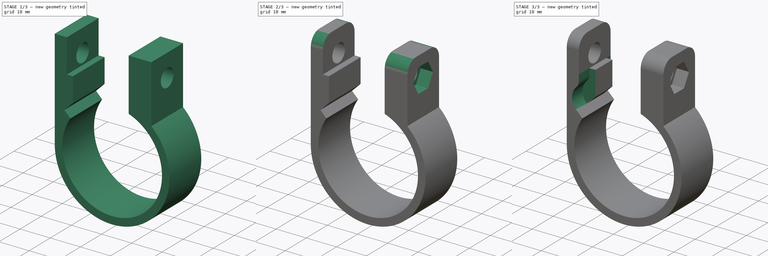
[diagram: build sequence overview — one tinted view per stage of 3, left to right]
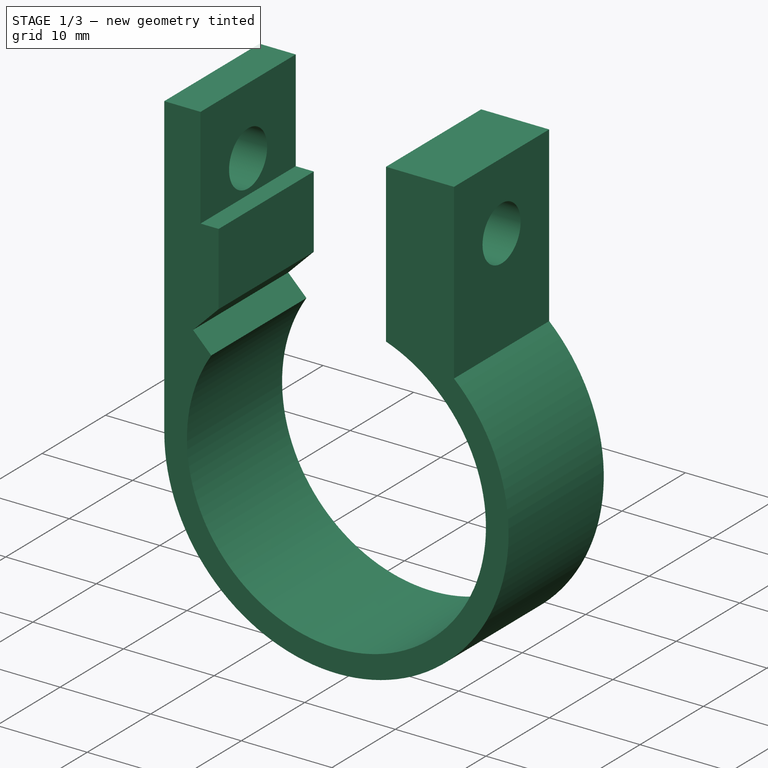
[diagram: stage 1 of 3 — iso view after this stage's code; geometry added in this stage tinted green]
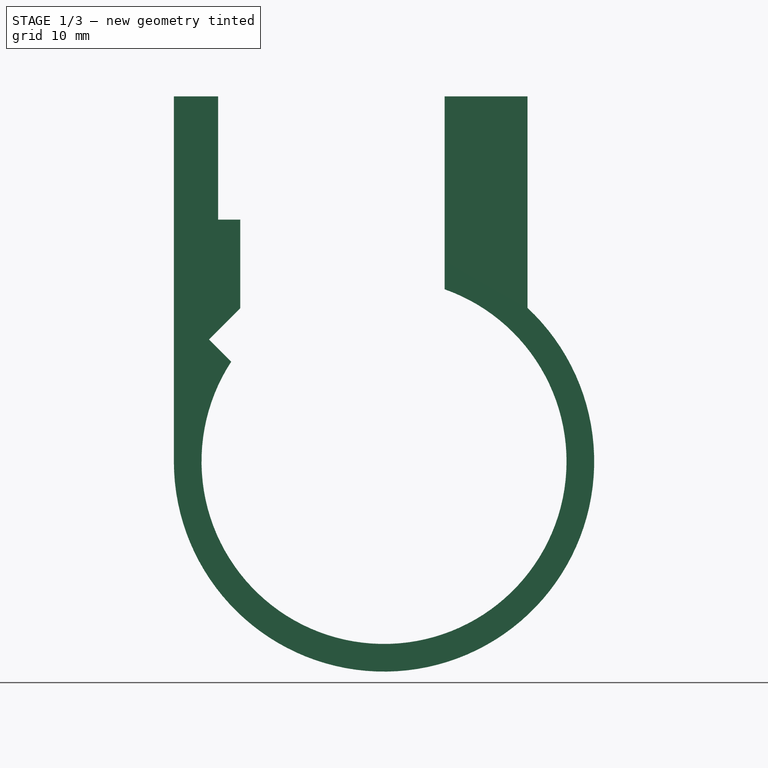
[diagram: stage 1 of 3 — front view after this stage's code; geometry added in this stage tinted green]
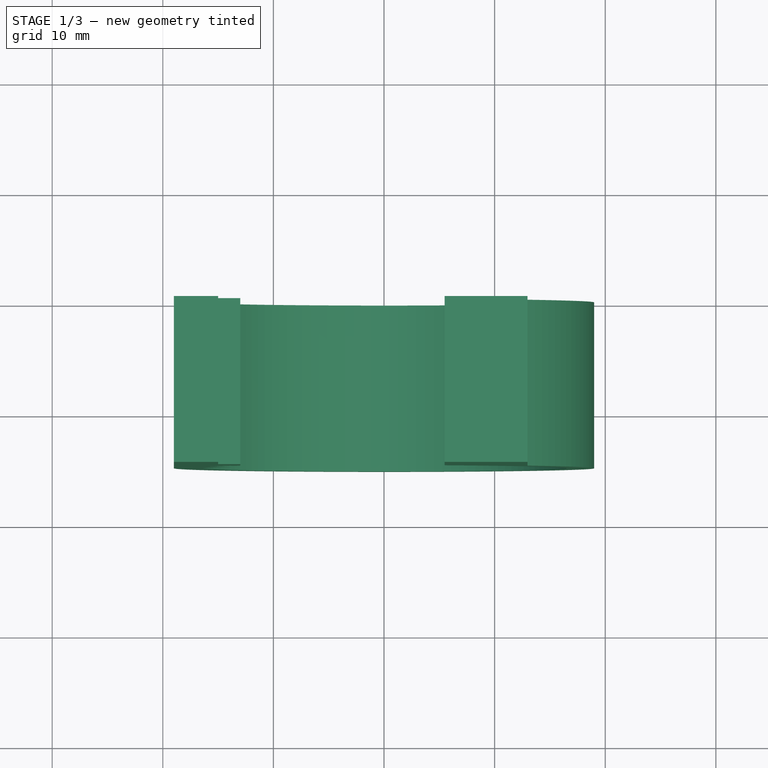
[diagram: stage 1 of 3 — top view after this stage's code; geometry added in this stage tinted green]
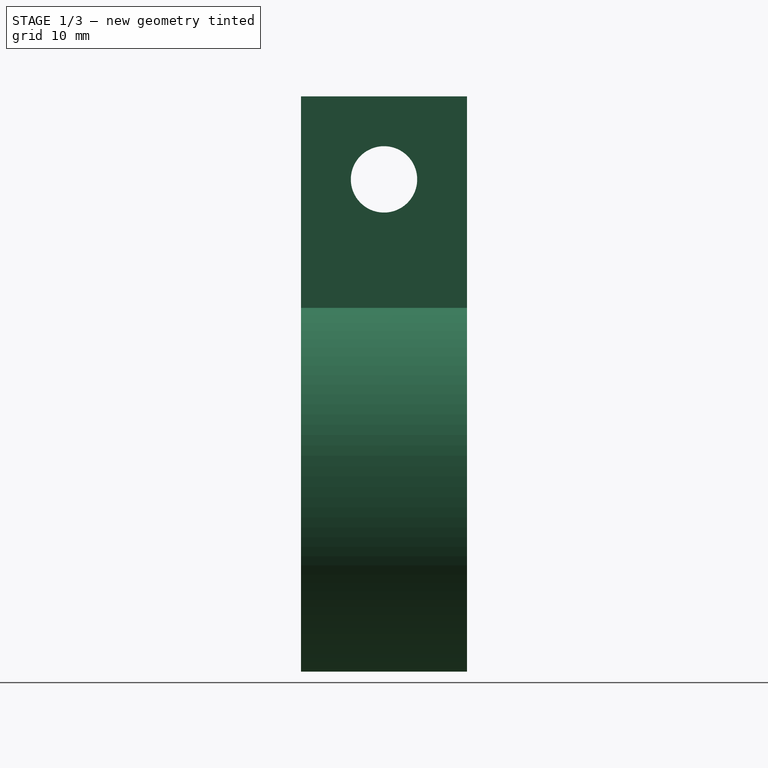
[diagram: stage 1 of 3 — right view after this stage's code; geometry added in this stage tinted green]
FCSTD DOCUMENT  (FreeCAD 0.17R13541 (Git))
Label: front-light
License: All rights reserved
LicenseURL: http://en.wikipedia.org/wiki/All_rights_reserved
objects: Sketcher::SketchObject×5, PartDesign::Pocket×4, PartDesign::Pad×1, PartDesign::Fillet×1, PartDesign::Body×1
note: 17 computed .brp shape members not serialized (recipe doc carries the construction recipe); baked Part::Feature solids carry a one-line shape summary decoded from their .brp

FEATURE [Sketcher::SketchObject] Sketch
  MapMode = 5
  Placement = pos=(0,0,0) rot=(1,0,0;1.5708rad)
  Support = -> [XZ_Plane]
  sketch-geometry (16):
    g0: Circle [constr] CenterX=0 CenterY=0 CenterZ=0 NormalX=0 NormalY=0 NormalZ=1 AngleXU=0 Radius=19
    g1: Circle [constr] CenterX=0 CenterY=0 CenterZ=0 NormalX=0 NormalY=0 NormalZ=1 AngleXU=0 Radius=16.5
    g2: GeomPoint X=-19 Y=0 Z=0
    g3: LineSegment StartX=-19 StartY=0 StartZ=0 EndX=-19 EndY=33 EndZ=0
    g4: LineSegment StartX=-19 StartY=33 StartZ=0 EndX=-15 EndY=33 EndZ=0
    g5: LineSegment StartX=-15 StartY=33 StartZ=0 EndX=-15 EndY=21.8564 EndZ=0
    g6: LineSegment StartX=-15 StartY=21.8564 StartZ=0 EndX=-13 EndY=21.8564 EndZ=0
    g7: LineSegment StartX=-13 StartY=21.8564 StartZ=0 EndX=-13 EndY=13.8564 EndZ=0
    g8: LineSegment StartX=-13 StartY=13.8564 StartZ=0 EndX=-15.8284 EndY=11.028 EndZ=0
    g9: LineSegment StartX=-15.8284 StartY=11.028 StartZ=0 EndX=-13.8179 EndY=9.01748 EndZ=0
    g10: LineSegment StartX=5.47308 StartY=15.5658 StartZ=0 EndX=5.47308 EndY=33 EndZ=0
    g11: LineSegment StartX=5.47308 StartY=33 StartZ=0 EndX=12.9731 EndY=33 EndZ=0
    g12: LineSegment StartX=12.9731 StartY=33 StartZ=0 EndX=12.9731 EndY=13.8816 EndZ=0
    g13: LineSegment [constr] StartX=-15 StartY=33 StartZ=0 EndX=5.47308 EndY=33 EndZ=0
    g14: ArcOfCircle CenterX=0 CenterY=0 CenterZ=0 NormalX=0 NormalY=0 NormalZ=1 AngleXU=0 Radius=19 StartAngle=3.14159 EndAngle=7.1024
    g15: ArcOfCircle CenterX=0 CenterY=0 CenterZ=0 NormalX=0 NormalY=0 NormalZ=1 AngleXU=0 Radius=16.5 StartAngle=2.5634 EndAngle=7.51587
  constraints (45):
    c: Coincident(g0,g-1)
    c: Radius(g0) = 19
    c: Coincident(g1,g-1)
    c: Radius(g1) = 16.5
    c: PointOnObject(g2,g0)
    c: PointOnObject(g2,g-1)
    c: Vertical(g3)
    c: Tangent(g3,g0)
    c: DistanceY(g3,g3) = 33
    c: Coincident(g3,g2)
    c: Coincident(g4,g3)
    c: Horizontal(g4)
    c: Coincident(g5,g4)
    c: Coincident(g6,g5)
    c: Horizontal(g6)
    c: Coincident(g7,g6)
    c: Vertical(g7)
    c: Coincident(g8,g7)
    c: Coincident(g9,g8)
    c: PointOnObject(g9,g1)
    c: Vertical(g5)
    c: Perpendicular(g9,g8)
    c: Angle(g7,g8) = 2.35619
    c: DistanceX(g3,g6) = 6
    c: DistanceX(g4,g4) = 4
    c: DistanceY(g7,g7) = 8
    c: PointOnObject(g7,g0)
    c: Distance(g8) = 4
    c: PointOnObject(g10,g1)
    c: Vertical(g10)
    c: Coincident(g11,g10)
    c: Horizontal(g11)
    c: Coincident(g12,g11)
    c: PointOnObject(g12,g0)
    c: Vertical(g12)
    c: DistanceX(g11,g11) = 7.5
    c: Coincident(g13,g4)
    c: Coincident(g13,g10)
    c: Horizontal(g13)
    c: Coincident(g14,g-1)
    c: Coincident(g14,g2)
    c: Coincident(g14,g12)
    c: Coincident(g15,g-1)
    c: Coincident(g15,g9)
    c: Coincident(g15,g10)
FEATURE [PartDesign::Pad] Pad
  Length = 15
  Length2 = 100
  Placement = pos=(0,0,0) rot=(1,0,0;1.5708rad)
  Profile = -> Sketch
  Type = 0
FEATURE [Sketcher::SketchObject] Sketch001
  MapMode = 5
  Placement = pos=(-19,0,0) rot=(0.707107,0,-0.707107;3.14159rad)
  Support = -> [Pad]
  sketch-geometry (1):
    g0: Circle CenterX=-25.5 CenterY=7.5 CenterZ=0 NormalX=0 NormalY=0 NormalZ=1 AngleXU=0 Radius=3
  constraints (3):
    c: Radius(g0) = 3
    c: DistanceY(g-1,g0) = 7.5
    c: DistanceX(g0,g-1) = 25.5
FEATURE [PartDesign::Pocket] Pocket
  BaseFeature = -> Pad
  Length = 5
  Length2 = 100
  Placement = pos=(0,0,0) rot=(1,0,0;1.5708rad)
  Profile = -> Sketch001
  Type = 1
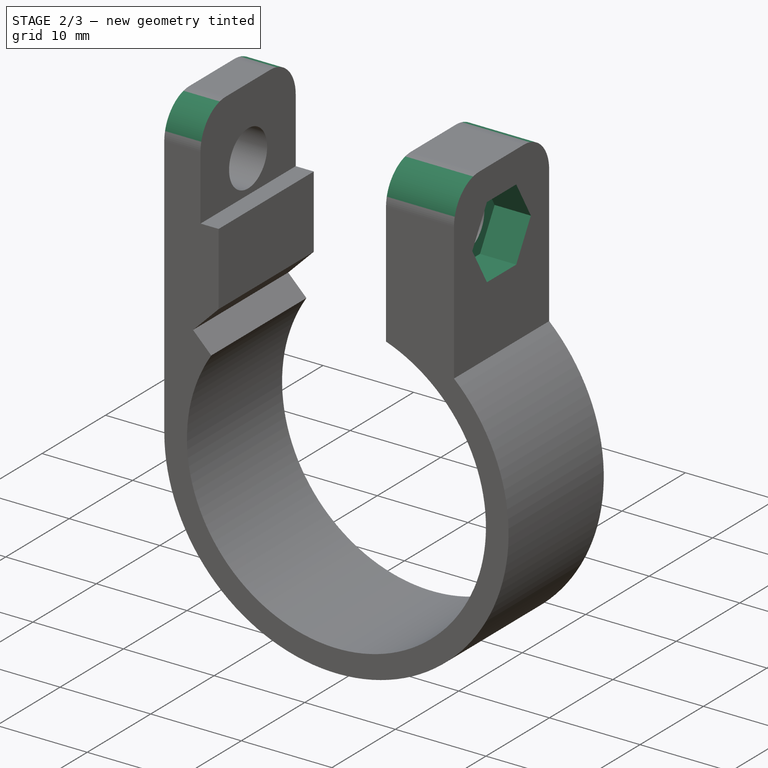
[diagram: stage 2 of 3 — iso view after this stage's code; geometry added in this stage tinted green]
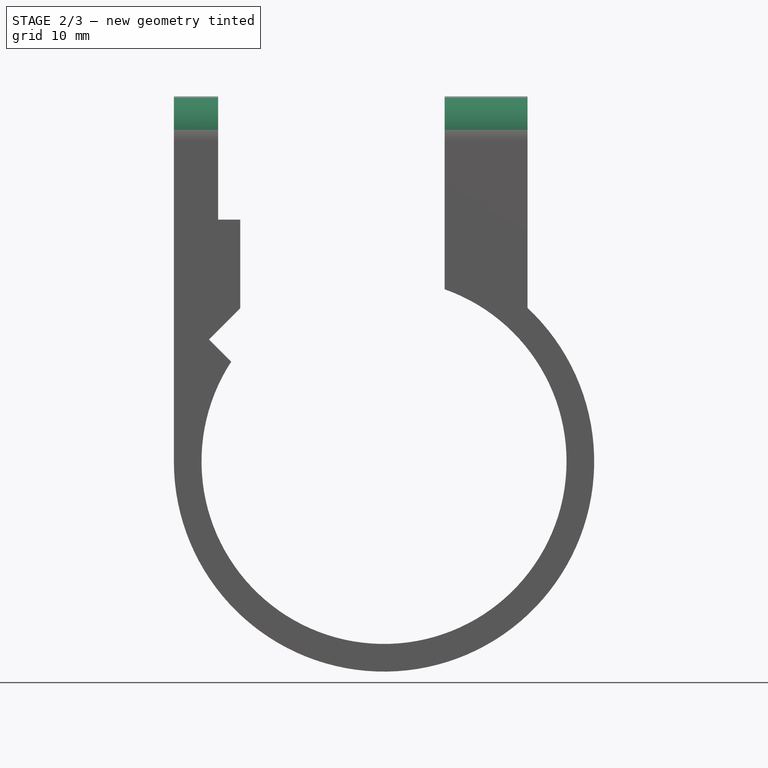
[diagram: stage 2 of 3 — front view after this stage's code; geometry added in this stage tinted green]
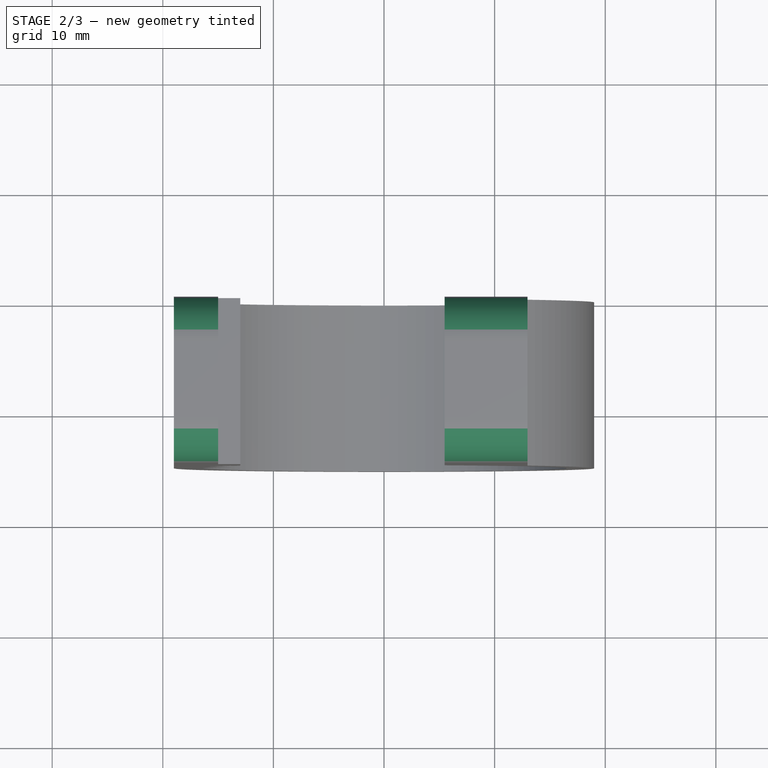
[diagram: stage 2 of 3 — top view after this stage's code; geometry added in this stage tinted green]
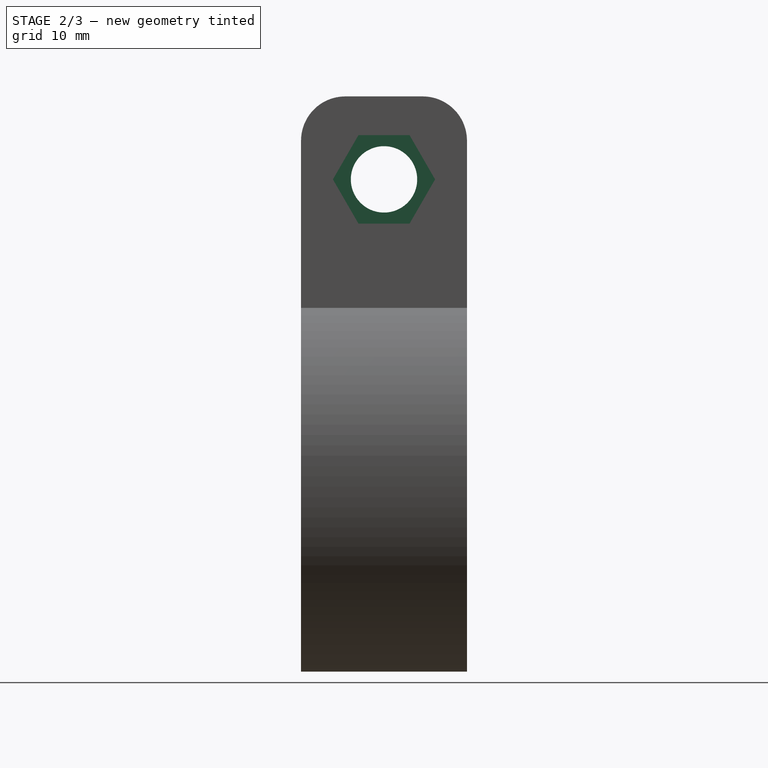
[diagram: stage 2 of 3 — right view after this stage's code; geometry added in this stage tinted green]
FEATURE [PartDesign::Fillet] Fillet
  Base = -> Pocket [Edge9,Edge19,Edge27,Edge17]
  BaseFeature = -> Pocket
  Placement = pos=(0,0,0) rot=(1,0,0;1.5708rad)
  Radius = 4
FEATURE [Sketcher::SketchObject] Sketch002
  MapMode = 5
  Placement = pos=(12.9731,0,0) rot=(0.707107,0,0.707107;3.14159rad)
  Support = -> [Fillet]
  sketch-geometry (7):
    g0: LineSegment StartX=21.5 StartY=9.8094 StartZ=0 EndX=21.5 EndY=5.1906 EndZ=0
    g1: LineSegment StartX=21.5 StartY=5.1906 StartZ=0 EndX=25.5 EndY=2.8812 EndZ=0
    g2: LineSegment StartX=25.5 StartY=2.8812 StartZ=0 EndX=29.5 EndY=5.1906 EndZ=0
    g3: LineSegment StartX=29.5 StartY=5.1906 StartZ=0 EndX=29.5 EndY=9.8094 EndZ=0
    g4: LineSegment StartX=29.5 StartY=9.8094 StartZ=0 EndX=25.5 EndY=12.1188 EndZ=0
    g5: LineSegment StartX=25.5 StartY=12.1188 StartZ=0 EndX=21.5 EndY=9.8094 EndZ=0
    g6: Circle [constr] CenterX=25.5 CenterY=7.5 CenterZ=0 NormalX=0 NormalY=0 NormalZ=1 AngleXU=0 Radius=4.6188
  constraints (17):
    c: Coincident(g0,g1)
    c: Coincident(g1,g2)
    c: Coincident(g2,g3)
    c: Coincident(g3,g4)
    c: Coincident(g4,g5)
    c: Coincident(g5,g0)
    c: Equal(g0, g1-g5) x5
    c: PointOnObject(g0,g6)
    c: PointOnObject(g1,g6)
    c: PointOnObject(g2,g6)
    c: PointOnObject(g3,g6)
    c: PointOnObject(g4,g6)
    c: PointOnObject(g5,g6)
    c: Vertical(g3)
    c: DistanceX(g0,g2) = 8
    c: DistanceX(g-1,g6) = 25.5
    c: DistanceY(g-1,g6) = 7.5
FEATURE [PartDesign::Pocket] Pocket001
  BaseFeature = -> Fillet
  Length = 4
  Length2 = 100
  Placement = pos=(0,0,0) rot=(1,0,0;1.5708rad)
  Profile = -> Sketch002
  Type = 0
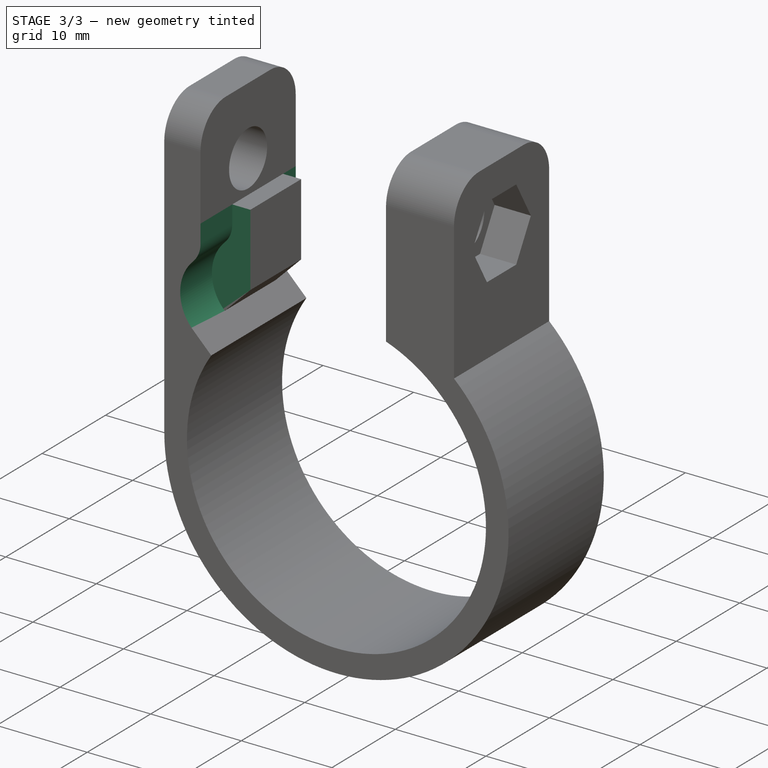
[diagram: stage 3 of 3 — iso view after this stage's code; geometry added in this stage tinted green]
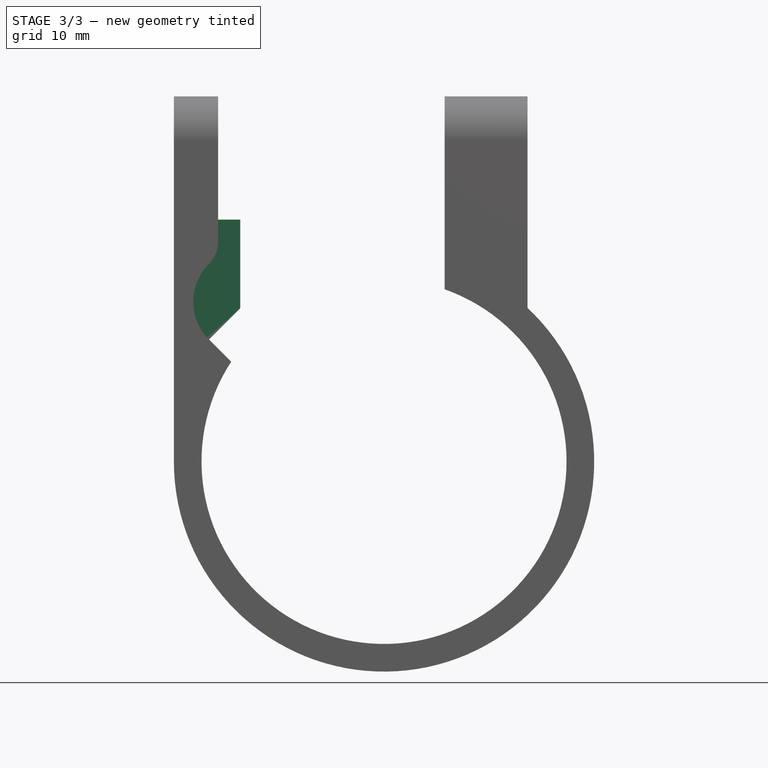
[diagram: stage 3 of 3 — front view after this stage's code; geometry added in this stage tinted green]
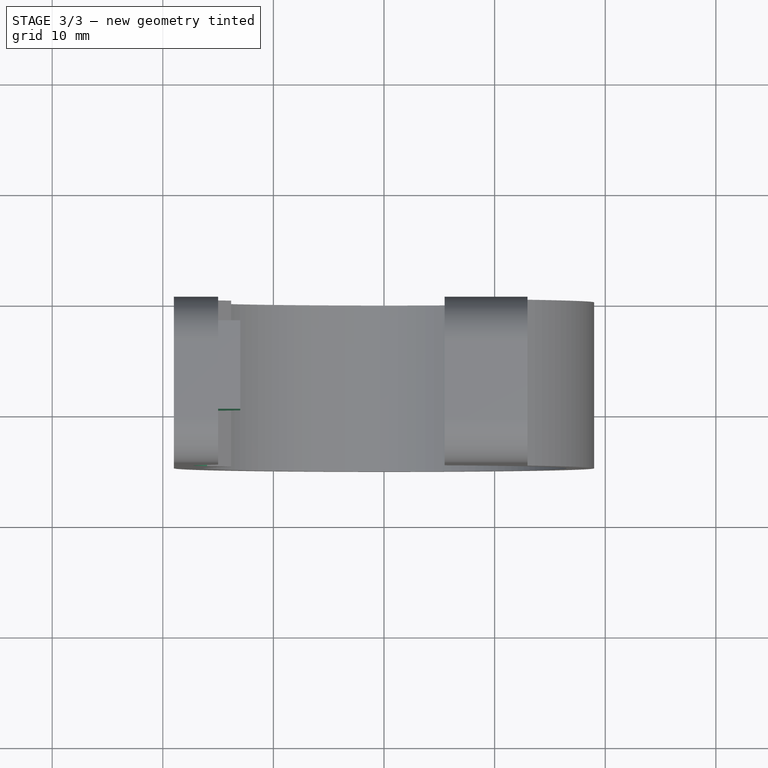
[diagram: stage 3 of 3 — top view after this stage's code; geometry added in this stage tinted green]
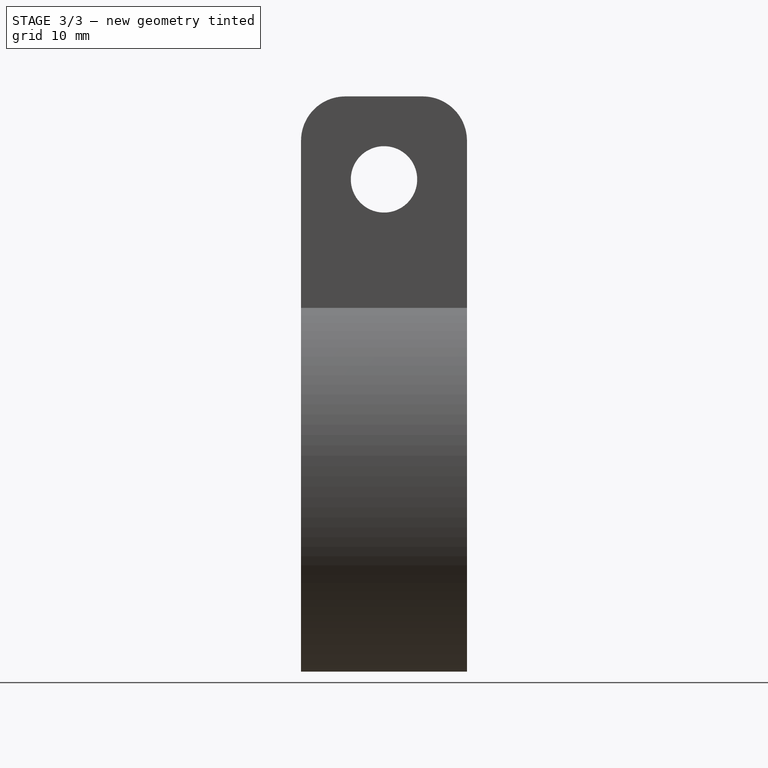
[diagram: stage 3 of 3 — right view after this stage's code; geometry added in this stage tinted green]
FEATURE [Sketcher::SketchObject] Sketch003
  ExternalGeometry = -> [Pocket001]
  MapMode = 5
  Placement = pos=(0,-15,0) rot=(1,0,0;1.5708rad)
  Support = -> [Pocket001]
  sketch-geometry (9):
    g0: LineSegment StartX=-15 StartY=21.8564 StartZ=0 EndX=-15 EndY=19.8564 EndZ=0
    g1: LineSegment [constr] StartX=-15 StartY=19.8564 StartZ=0 EndX=-17.8284 EndY=19.8564 EndZ=0
    g2: ArcOfCircle CenterX=-17.8284 CenterY=19.8564 CenterZ=0 NormalX=0 NormalY=0 NormalZ=1 AngleXU=0 Radius=2.82843 StartAngle=5.49779 EndAngle=6.28319
    g3: LineSegment [constr] StartX=-15.8284 StartY=11.028 StartZ=0 EndX=-12.4142 EndY=14.4422 EndZ=0
    g4: ArcOfCircle CenterX=-12.4142 CenterY=14.4422 CenterZ=0 NormalX=0 NormalY=0 NormalZ=1 AngleXU=0 Radius=4.82843 StartAngle=2.35619 EndAngle=3.92699
    g5: LineSegment [constr] StartX=-17.8284 StartY=19.8564 StartZ=0 EndX=-12.4142 EndY=14.4422 EndZ=0
    g6: LineSegment StartX=-15 StartY=21.8564 StartZ=0 EndX=-13 EndY=21.8564 EndZ=0
    g7: LineSegment StartX=-13 StartY=21.8564 StartZ=0 EndX=-13 EndY=13.8564 EndZ=0
    g8: LineSegment StartX=-13 StartY=13.8564 StartZ=0 EndX=-15.8284 EndY=11.028 EndZ=0
  constraints (22):
    c: Coincident(g0,g-5)
    c: Vertical(g0)
    c: Coincident(g1,g0)
    c: Perpendicular(g1,g0)
    c: Coincident(g2,g1)
    c: Coincident(g2,g0)
    c: Coincident(g3,g-7)
    c: Perpendicular(g3,g-7)
    c: Coincident(g4,g3)
    c: Coincident(g4,g3)
    c: Coincident(g2,g4)
    c: Coincident(g5,g1)
    c: Coincident(g5,g3)
    c: PointOnObject(g2,g5)
    c: DistanceY(g0,g0) = 2
    c: Perpendicular(g3,g5)
    c: Coincident(g6,g0)
    c: Coincident(g6,g-4)
    c: Coincident(g7,g6)
    c: Coincident(g7,g-6)
    c: Coincident(g8,g7)
    c: Coincident(g8,g3)
FEATURE [PartDesign::Pocket] Pocket002
  BaseFeature = -> Pocket001
  Length = 5
  Length2 = 100
  Placement = pos=(0,0,0) rot=(1,0,0;1.5708rad)
  Profile = -> Sketch003
  Type = 0
FEATURE [Sketcher::SketchObject] Sketch004
  ExternalGeometry = -> [Pocket002]
  MapMode = 5
  Placement = pos=(0,0,0) rot=(-1,0,0;1.5708rad)
  Support = -> [Pocket002]
  sketch-geometry (9):
    g0: LineSegment StartX=-15 StartY=-21.8564 StartZ=0 EndX=-15 EndY=-19.8564 EndZ=0
    g1: LineSegment [constr] StartX=-15 StartY=-19.8564 StartZ=0 EndX=-17.8284 EndY=-19.8564 EndZ=0
    g2: LineSegment [constr] StartX=-15.8284 StartY=-11.028 StartZ=0 EndX=-12.4142 EndY=-14.4422 EndZ=0
    g3: ArcOfCircle CenterX=-12.4142 CenterY=-14.4422 CenterZ=0 NormalX=0 NormalY=0 NormalZ=1 AngleXU=0 Radius=4.82843 StartAngle=2.35619 EndAngle=3.92699
    g4: ArcOfCircle CenterX=-17.8284 CenterY=-19.8564 CenterZ=0 NormalX=0 NormalY=0 NormalZ=1 AngleXU=0 Radius=2.82843 StartAngle=0 EndAngle=0.785398
    g5: LineSegment [constr] StartX=-17.8284 StartY=-19.8564 StartZ=0 EndX=-12.4142 EndY=-14.4422 EndZ=0
    g6: LineSegment StartX=-15 StartY=-21.8564 StartZ=0 EndX=-13 EndY=-21.8564 EndZ=0
    g7: LineSegment StartX=-13 StartY=-21.8564 StartZ=0 EndX=-13 EndY=-13.8564 EndZ=0
    g8: LineSegment StartX=-13 StartY=-13.8564 StartZ=0 EndX=-15.8284 EndY=-11.028 EndZ=0
  constraints (22):
    c: Coincident(g0,g-5)
    c: Vertical(g0)
    c: DistanceY(g0,g0) = 2
    c: Coincident(g1,g0)
    c: Perpendicular(g0,g1)
    c: Coincident(g2,g-3)
    c: Perpendicular(g-6,g2)
    c: Coincident(g3,g2)
    c: Coincident(g3,g2)
    c: Coincident(g4,g1)
    c: Coincident(g4,g0)
    c: Coincident(g3,g4)
    c: Coincident(g5,g1)
    c: Coincident(g5,g2)
    c: PointOnObject(g3,g5)
    c: Perpendicular(g2,g5)
    c: Coincident(g6,g0)
    c: Coincident(g6,g-5)
    c: Coincident(g7,g6)
    c: Coincident(g7,g-4)
    c: Coincident(g8,g7)
    c: Coincident(g8,g2)
FEATURE [PartDesign::Pocket] Pocket003
  BaseFeature = -> Pocket002
  Length = 2
  Length2 = 100
  Placement = pos=(0,0,0) rot=(1,0,0;1.5708rad)
  Profile = -> Sketch004
  Type = 0
FEATURE [PartDesign::Body] Body
  Group = -> [Sketch,Pad,Sketch001,Pocket,Fillet,Sketch002,Pocket001,Sketch003,Pocket002,Sketch004,Pocket003]
  Origin = -> Origin
  Tip = -> Pocket003
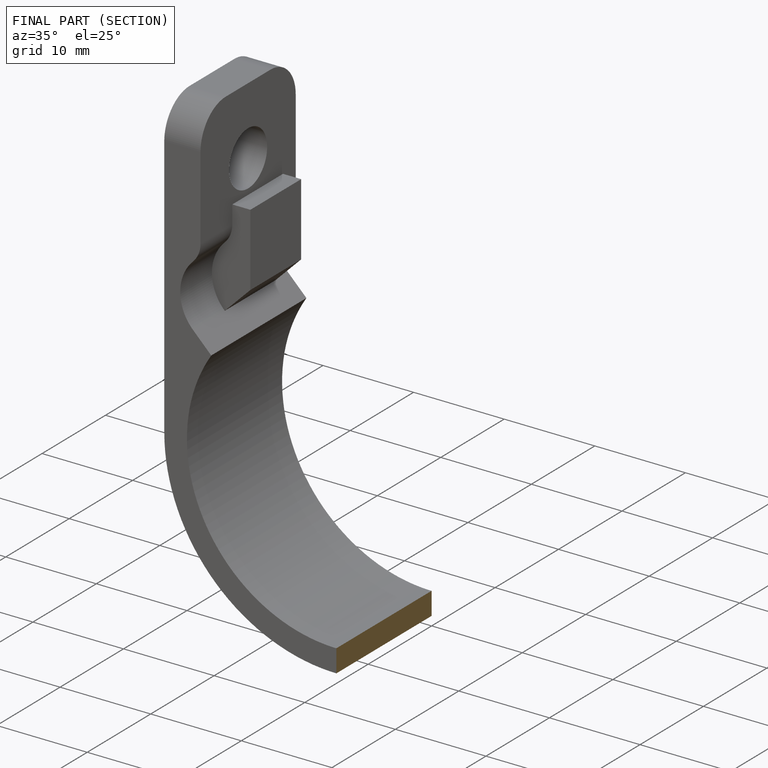
[diagram: finished part — half-section view (interior)]
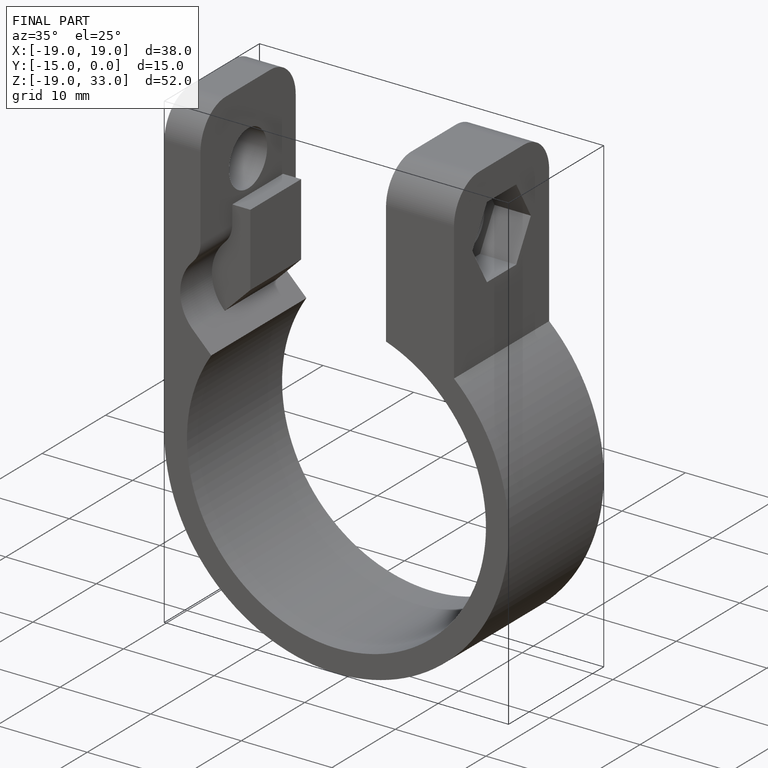
[diagram: finished part — iso view with bounding-box wireframe]
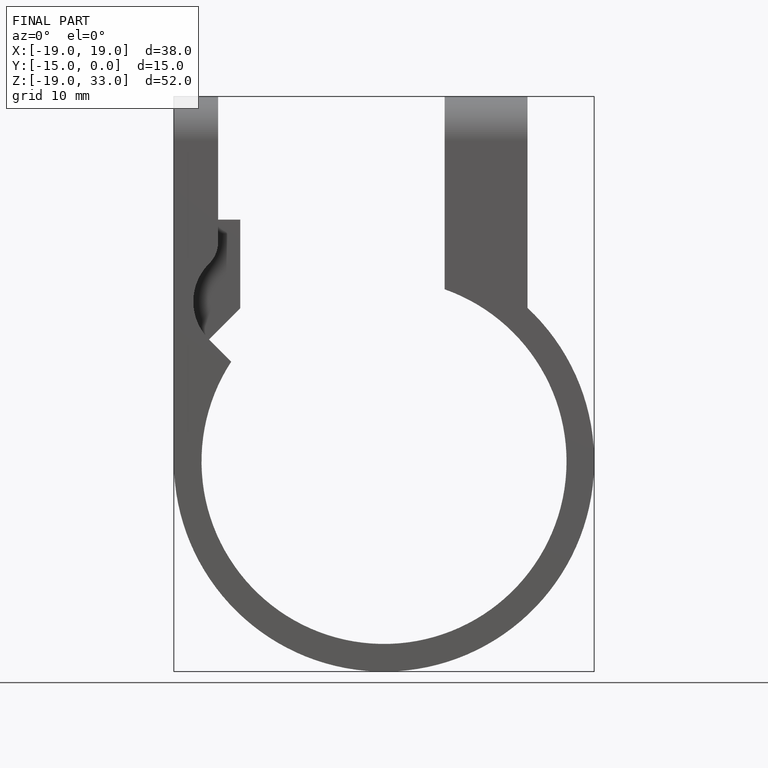
[diagram: finished part — front view with bounding-box wireframe]
